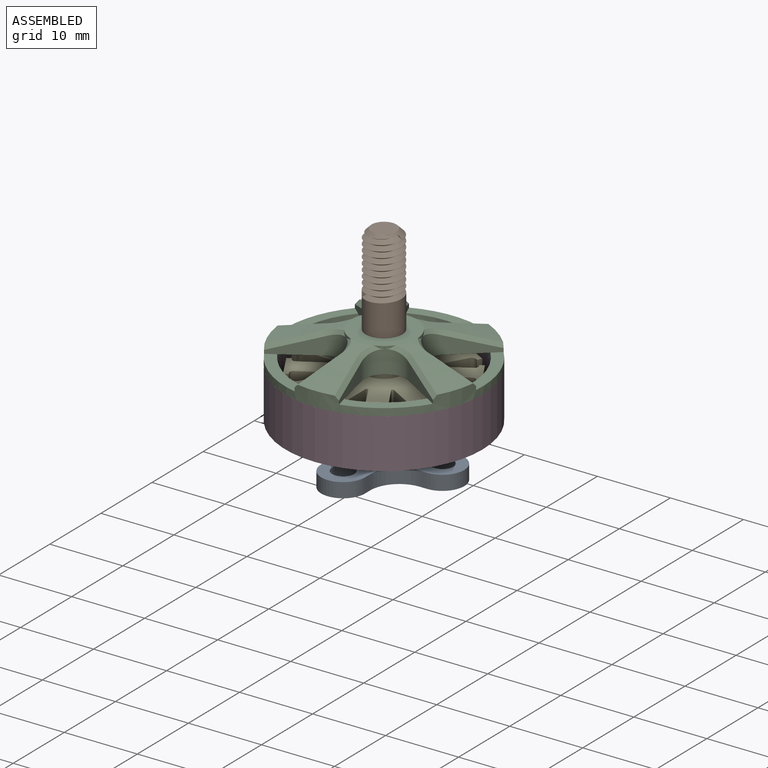
[diagram: assembled view]
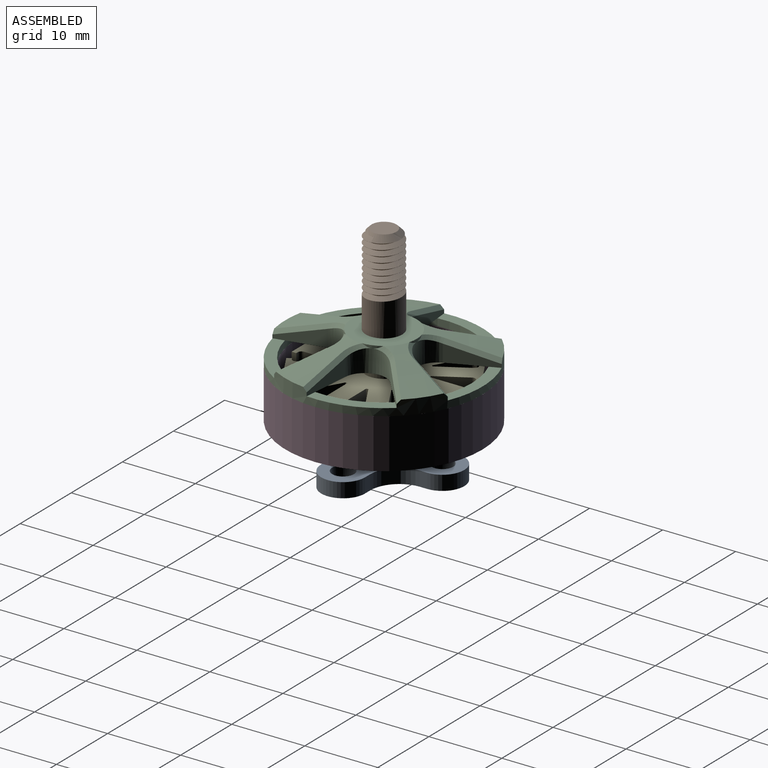
[diagram: assembled view, second angle]
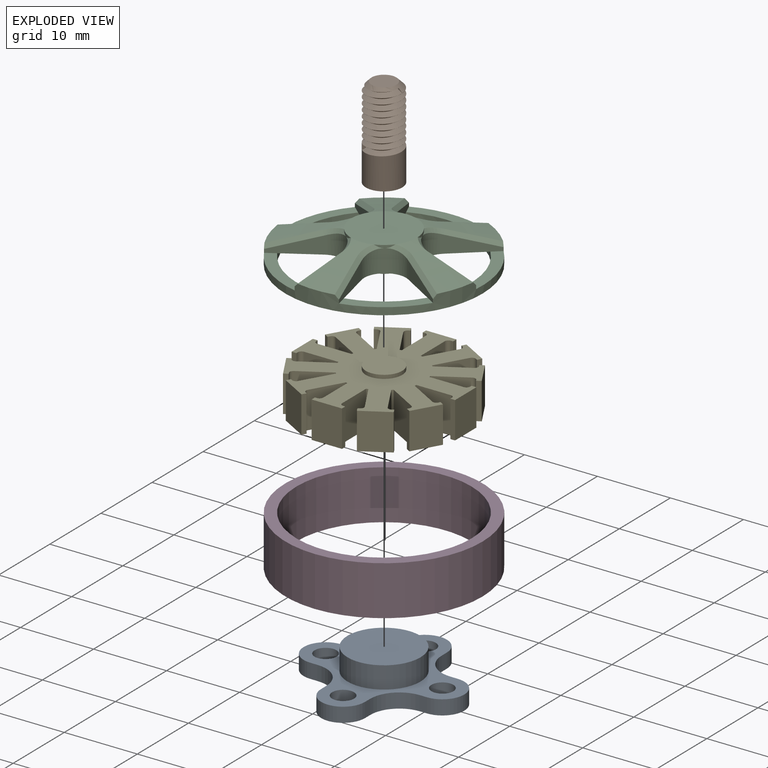
[diagram: exploded view]
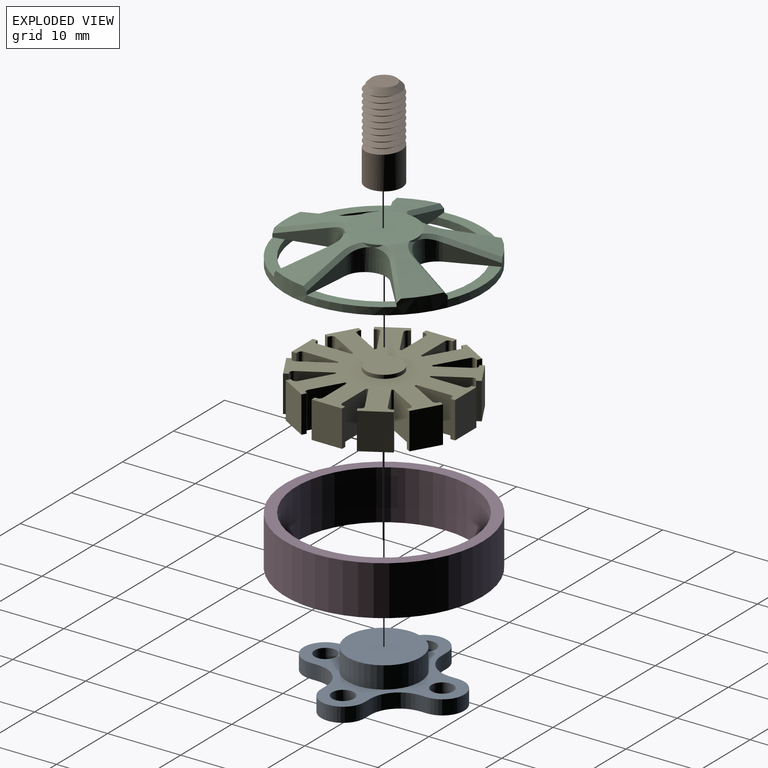
[diagram: exploded view, second angle]
ASSEMBLY  parts=5 mates=4
PART A: 27 faces, bbox 22x22x5 mm
  f0: plane 9x9mm, normal (0,0,-1), area 63.6mm2, adj f1
  f1: cylinder r=4.5mm len=9mm, axis (0,0,-1), area 56.5mm2, adj f0,f2
  f2: plane 22x22mm, normal (0,0,-1), area 134.4mm2, adj f1,f3,f4,f5,f6,f7,f8,f9
  f3: plane 2x1mm, normal (0,-1,0), area 2mm2, adj f2,f4,f18,f23
  f4: cylinder r=4mm len=4mm, axis (0,0,-1), area 12.6mm2, adj f2,f3,f5,f23
  f5: plane 2x1mm, normal (1,0,0), area 2mm2, adj f2,f4,f6,f23
  f6: cylinder r=3mm len=6mm, axis (0,0,-1), area 18.8mm2, adj f2,f5,f7,f23
  f7: plane 2x1mm, normal (-1,0,0), area 2mm2, adj f2,f6,f8,f23
  f8: cylinder r=4mm len=4mm, axis (0,0,-1), area 12.6mm2, adj f2,f7,f9,f23
  f9: plane 2x1mm, normal (0,-1,0), area 2mm2, adj f2,f8,f10,f23
  f10: cylinder r=3mm len=6mm, axis (0,0,-1), area 18.8mm2, adj f2,f9,f11,f23
  f11: plane 2x1mm, normal (0,1,0), area 2mm2, adj f2,f10,f12,f23
  f12: cylinder r=4mm len=4mm, axis (0,0,-1), area 12.6mm2, adj f2,f11,f13,f23
  f13: plane 2x1mm, normal (-1,0,0), area 2mm2, adj f2,f12,f14,f23
  f14: cylinder r=3mm len=6mm, axis (0,0,-1), area 18.8mm2, adj f2,f13,f15,f23
  f15: plane 2x1mm, normal (1,0,0), area 2mm2, adj f2,f14,f16,f23
  f16: cylinder r=4mm len=4mm, axis (0,0,-1), area 12.6mm2, adj f2,f15,f17,f23
  f17: plane 2x1mm, normal (0,1,0), area 2mm2, adj f2,f16,f18,f23
  f18: cylinder r=3mm len=6mm, axis (0,0,-1), area 18.8mm2, adj f2,f3,f17,f23
  f19: cylinder r=1.5mm len=3mm, axis (0,0,-1), area 18.8mm2, adj f2,f23
  f20: cylinder r=1.5mm len=3mm, axis (0,0,-1), area 18.8mm2, adj f2,f23
  f21: cylinder r=1.5mm len=3mm, axis (0,0,-1), area 18.8mm2, adj f2,f23
  f22: cylinder r=1.5mm len=3mm, axis (0,0,-1), area 18.8mm2, adj f2,f23
  f23: plane 22x22mm, normal (0,0,1), area 119.5mm2, adj f3,f4,f5,f6,f7,f8,f9,f10
  f24: cylinder r=5mm len=10mm, axis (0,0,-1), area 94.2mm2, adj f23,f25
  f25: plane 10x10mm, normal (0,0,1), area 58.9mm2, adj f24,f26
  f26: plane 5x5mm, normal (0,0,1), area 19.6mm2, adj f25
PART B: 10 faces, bbox 5.6x5.6x12.6 mm
  f0: plane 3.4x3.4mm, normal (0,0,1), area 9.1mm2, adj f2
  f1: plane 0.68x0.51mm, normal (0,-1,0), area 0.1mm2, adj f2,f3,f4,f5
  f2: cone r=1.7mm half-angle=45deg, axis (0,0,-1), area 10.2mm2, adj f0,f1,f4,f5
  f3: bspline ~7.99x5.58mm, area 100.2mm2, adj f1,f4,f5,f6,f7,f8
  f4: cylinder r=2.5mm len=6.7mm, axis (0,0,-1), area -4.7mm2, adj f1,f2,f3,f5,f8
  f5: bspline ~7.99x5.58mm, area 102.2mm2, adj f1,f2,f3,f4,f6,f8
  f6: plane 0.78x0.48mm, normal (0.71,-0.71,0), area 0.3mm2, adj f3,f5,f7
  f7: cylinder r=2.5mm len=5mm, axis (0,0,-1), area 71.9mm2, adj f3,f6,f8,f9
  f8: cylinder r=2.5mm len=0.66mm, axis (0,0,-1), area 0mm2, adj f3,f4,f5,f7
  f9: plane 5x5mm, normal (0,0,-1), area 19.6mm2, adj f7
PART C: 63 faces, bbox 27.1x27x4.6 mm
  f0: plane 10.55x2.45mm, normal (0,0,1), area 15.4mm2, adj f7,f8,f25,f26
  f1: plane 10.03x4.44mm, normal (0,0,1), area 15.4mm2, adj f7,f8,f30,f31
  f2: cone r=13.5mm half-angle=74.5deg, axis (0,0,-1), area 29.7mm2, adj f7,f32,f42,f43,f44,f45
  f3: plane 8.87x6.97mm, normal (0,0,1), area 15.4mm2, adj f7,f8,f15,f16
  f4: cone r=13.5mm half-angle=74.5deg, axis (0,0,-1), area 29.7mm2, adj f7,f32,f46,f47,f48,f49
  f5: plane 8.87x6.97mm, normal (0,0,1), area 15.4mm2, adj f7,f8,f20,f21
  f6: cone r=13.5mm half-angle=74.5deg, axis (0,0,-1), area 29.7mm2, adj f7,f32,f50,f51,f52,f53
  f7: cylinder r=13.5mm len=27mm, axis (0,0,-1), area 114.1mm2, adj f0,f1,f2,f3,f4,f5,f6,f9
  f8: cylinder r=12mm len=24mm, axis (0,0,-1), area 75.4mm2, adj f0,f1,f3,f5,f9,f38,f61
  f9: plane 10.03x4.44mm, normal (0,0,1), area 15.4mm2, adj f7,f8,f36,f37
  f10: cone r=13.5mm half-angle=74.5deg, axis (0,0,-1), area 29.7mm2, adj f7,f32,f40,f41,f58,f59
  f11: cone r=13.5mm half-angle=74.5deg, axis (0,0,-1), area 29.7mm2, adj f7,f32,f54,f55,f56,f57
  f12: cylinder r=4.5mm len=3.5mm, axis (0,0,-1), area 0.9mm2, adj f13,f14,f32,f38,f48,f51
  f13: cylinder r=2.8mm len=3.12mm, axis (0,0,-1), area 9mm2, adj f12,f15,f38,f48
  f14: cylinder r=2.8mm len=3.12mm, axis (0,0,-1), area 9mm2, adj f12,f16,f38,f51
  f15: plane 5.79x3.48mm, normal (-0.52,-0.86,0), area 9.6mm2, adj f3,f7,f13,f38,f49
  f16: plane 6.59x2.35mm, normal (0.97,0.22,0), area 9.6mm2, adj f3,f7,f14,f38,f50
  f17: cylinder r=4.5mm len=3.5mm, axis (0,0,-1), area 0.9mm2, adj f18,f19,f32,f38,f52,f55
  f18: cylinder r=2.8mm len=3.12mm, axis (0,0,-1), area 9mm2, adj f17,f20,f38,f52
  f19: cylinder r=2.8mm len=3.12mm, axis (0,0,-1), area 9mm2, adj f17,f21,f38,f55
  f20: plane 6.59x2.35mm, normal (-0.97,0.22,0), area 9.6mm2, adj f5,f7,f18,f38,f53
  f21: plane 5.79x3.48mm, normal (0.52,-0.86,0), area 9.6mm2, adj f5,f7,f19,f38,f54
  f22: cylinder r=4.5mm len=3.5mm, axis (0,0,-1), area 0.9mm2, adj f23,f24,f32,f38,f41,f43
  f23: cylinder r=2.8mm len=3.12mm, axis (0,0,-1), area 9mm2, adj f22,f25,f38,f43
  f24: cylinder r=2.8mm len=3.12mm, axis (0,0,-1), area 9mm2, adj f22,f26,f38,f41
  f25: plane 6.22x2.64mm, normal (-0.92,0.39,0), area 9.6mm2, adj f0,f7,f23,f38,f42
  f26: plane 6.22x2.64mm, normal (0.92,0.39,0), area 9.6mm2, adj f0,f7,f24,f38,f40
  f27: cylinder r=4.5mm len=3.5mm, axis (0,0,-1), area 0.9mm2, adj f28,f29,f32,f38,f44,f47
  f28: cylinder r=2.8mm len=3.12mm, axis (0,0,-1), area 9mm2, adj f27,f30,f38,f44
  f29: cylinder r=2.8mm len=3.12mm, axis (0,0,-1), area 9mm2, adj f27,f31,f38,f47
  f30: plane 5.1x4.43mm, normal (0.66,-0.75,0), area 9.6mm2, adj f1,f7,f28,f38,f45
  f31: plane 6.73x2.35mm, normal (0.09,1,0), area 9.6mm2, adj f1,f7,f29,f38,f46
  f32: plane 9x9mm, normal (0,0,1), area 44mm2, adj f2,f4,f6,f10,f11,f12,f17,f22
  f33: cylinder r=4.5mm len=3.5mm, axis (0,0,-1), area 0.9mm2, adj f32,f34,f35,f38,f56,f59
  f34: cylinder r=2.8mm len=3.12mm, axis (0,0,-1), area 9mm2, adj f33,f36,f38,f56
  f35: cylinder r=2.8mm len=3.12mm, axis (0,0,-1), area 9mm2, adj f33,f37,f38,f59
  f36: plane 6.73x2.35mm, normal (-0.09,1,0), area 9.6mm2, adj f7,f9,f34,f38,f57
  f37: plane 5.1x4.43mm, normal (-0.66,-0.75,0), area 9.6mm2, adj f7,f9,f35,f38,f58
  f38: plane 23.91x23.05mm, normal (0,0,-1), area 192.8mm2, adj f8,f12,f13,f14,f15,f16,f17,f18
  f39: cylinder r=2.5mm len=5mm, axis (0,0,-1), area 15.7mm2, adj f38,f60
  f40: bspline ~6.3x3.16mm, area 4.9mm2, adj f7,f10,f26,f41
  f41: bspline ~3.33x2.17mm, area 2.1mm2, adj f10,f22,f24,f40
  f42: bspline ~6.3x3.16mm, area 4.9mm2, adj f2,f7,f25,f43
  f43: bspline ~3.12x2.07mm, area 2.1mm2, adj f2,f22,f23,f42
  f44: bspline ~3.78x1.65mm, area 2.1mm2, adj f2,f27,f28,f45
  f45: bspline ~5.33x4.9mm, area 4.9mm2, adj f2,f7,f30,f44
  f46: bspline ~6.82x2.36mm, area 4.9mm2, adj f4,f7,f31,f47
  f47: bspline ~2.86x2.46mm, area 2.1mm2, adj f4,f27,f29,f46
  f48: bspline ~3.7x1.25mm, area 2.1mm2, adj f4,f12,f13,f49
  f49: bspline ~6.17x3.85mm, area 4.9mm2, adj f4,f7,f15,f48
  f50: bspline ~6.83x2.36mm, area 4.9mm2, adj f6,f7,f16,f51
  f51: bspline ~3.45x1.65mm, area 2.1mm2, adj f6,f12,f14,f50
  f52: bspline ~3.45x1.65mm, area 2.1mm2, adj f6,f17,f18,f53
  f53: bspline ~6.83x2.36mm, area 4.9mm2, adj f6,f7,f20,f52
  f54: bspline ~6.17x3.85mm, area 4.9mm2, adj f7,f11,f21,f55
  f55: bspline ~3.7x1.25mm, area 2.1mm2, adj f11,f17,f19,f54
  f56: bspline ~2.86x2.46mm, area 2.1mm2, adj f11,f33,f34,f57
  f57: bspline ~6.82x2.36mm, area 4.9mm2, adj f7,f11,f36,f56
  f58: bspline ~5.33x4.9mm, area 4.9mm2, adj f7,f10,f37,f59
  f59: bspline ~3.59x1.35mm, area 2.1mm2, adj f10,f33,f35,f58
  f60: plane 5x5mm, normal (0,0,-1), area 19.6mm2, adj f39
  f61: plane 27x27mm, normal (0,0,-1), area 120.2mm2, adj f7,f8
  f62: plane 5x5mm, normal (0,0,1), area 19.6mm2, adj f32
PART D: 4 faces, bbox 27x27x6.8 mm
  f0: plane 27x27mm, normal (0,0,1), area 120.2mm2, adj f1,f3
  f1: cylinder r=13.5mm len=27mm, axis (0,0,-1), area 576.8mm2, adj f0,f2
  f2: plane 27x27mm, normal (0,0,-1), area 120.2mm2, adj f1,f3
  f3: cylinder r=12mm len=24mm, axis (0,0,-1), area 512.7mm2, adj f0,f2
PART E: 126 faces, bbox 22.4x22.4x7 mm
  f0: plane 5x5mm, normal (0,0,1), area 19.6mm2, adj f125
  f1: plane 5x5mm, normal (0,0,-1), area 19.6mm2, adj f2
  f2: cylinder r=2.5mm len=5mm, axis (0,0,-1), area 23.6mm2, adj f1,f3
  f3: plane 22.39x22.38mm, normal (0,0,-1), area 267.2mm2, adj f2,f4,f5,f6,f7,f8,f9,f10
  f4: cylinder r=0.5mm len=5mm, axis (0,0,-1), area 3.9mm2, adj f3,f5,f123,f124
  f5: plane 5x0.25mm, normal (-0.87,-0.5,0), area 1.4mm2, adj f3,f4,f6,f124
  f6: plane 5x0.56mm, normal (-0.5,0.87,0), area 3.3mm2, adj f3,f5,f7,f124
  f7: plane 5x3.6mm, normal (0.87,0.5,0), area 20.8mm2, adj f3,f6,f8,f124
  f8: plane 5x0.56mm, normal (0.5,-0.87,0), area 3.3mm2, adj f3,f7,f9,f124
  f9: plane 5x0.25mm, normal (-0.87,-0.5,0), area 1.4mm2, adj f3,f8,f10,f124
  f10: cylinder r=0.5mm len=5mm, axis (0,0,-1), area 3.9mm2, adj f3,f9,f11,f124
  f11: plane 5x4.07mm, normal (0.5,-0.87,0), area 23.5mm2, adj f3,f10,f12,f124
  f12: cylinder r=5.5mm len=5mm, axis (0,0,-1), area 1.3mm2, adj f3,f11,f13,f124
  f13: plane 5x4.7mm, normal (0,1,0), area 23.5mm2, adj f3,f12,f14,f124
  f14: cylinder r=0.5mm len=5mm, axis (0,0,-1), area 3.9mm2, adj f3,f13,f15,f124
  f15: plane 5x0.29mm, normal (-1,0,0), area 1.4mm2, adj f3,f14,f16,f124
  f16: plane 5x0.65mm, normal (0,1,0), area 3.3mm2, adj f3,f15,f17,f124
  f17: plane 5x4.16mm, normal (1,0,0), area 20.8mm2, adj f3,f16,f18,f124
  f18: plane 5x0.65mm, normal (0,-1,0), area 3.3mm2, adj f3,f17,f19,f124
  f19: plane 5x0.29mm, normal (-1,0,0), area 1.4mm2, adj f3,f18,f20,f124
  f20: cylinder r=0.5mm len=5mm, axis (0,0,-1), area 3.9mm2, adj f3,f19,f21,f124
  f21: plane 5x4.7mm, normal (0,-1,0), area 23.5mm2, adj f3,f20,f22,f124
  f22: cylinder r=5.5mm len=5mm, axis (0,0,-1), area 1.3mm2, adj f3,f21,f23,f124
  f23: plane 5x4.07mm, normal (0.5,0.87,0), area 23.5mm2, adj f3,f22,f24,f124
  f24: cylinder r=0.5mm len=5mm, axis (0,0,-1), area 3.9mm2, adj f3,f23,f25,f124
  f25: plane 5x0.25mm, normal (-0.87,0.5,0), area 1.4mm2, adj f3,f24,f26,f124
  f26: plane 5x0.56mm, normal (0.5,0.87,0), area 3.3mm2, adj f3,f25,f27,f124
  f27: plane 5x3.6mm, normal (0.87,-0.5,0), area 20.8mm2, adj f3,f26,f28,f124
  f28: plane 5x0.56mm, normal (-0.5,-0.87,0), area 3.3mm2, adj f3,f27,f29,f124
  f29: plane 5x0.25mm, normal (-0.87,0.5,0), area 1.4mm2, adj f3,f28,f30,f124
  f30: cylinder r=0.5mm len=5mm, axis (0,0,-1), area 3.9mm2, adj f3,f29,f31,f124
  f31: plane 5x4.07mm, normal (-0.5,-0.87,0), area 23.5mm2, adj f3,f30,f32,f124
  f32: cylinder r=5.5mm len=5mm, axis (0,0,-1), area 1.3mm2, adj f3,f31,f33,f124
  f33: plane 5x4.07mm, normal (0.87,0.5,0), area 23.5mm2, adj f3,f32,f34,f124
  f34: cylinder r=0.5mm len=5mm, axis (0,0,-1), area 3.9mm2, adj f3,f33,f35,f124
  f35: plane 5x0.25mm, normal (-0.5,0.87,0), area 1.4mm2, adj f3,f34,f36,f124
  f36: plane 5x0.56mm, normal (0.87,0.5,0), area 3.3mm2, adj f3,f35,f37,f124
  f37: plane 5x3.6mm, normal (0.5,-0.87,0), area 20.8mm2, adj f3,f36,f38,f124
  f38: plane 5x0.56mm, normal (-0.87,-0.5,0), area 3.3mm2, adj f3,f37,f39,f124
  f39: plane 5x0.25mm, normal (-0.5,0.87,0), area 1.4mm2, adj f3,f38,f40,f124
  f40: cylinder r=0.5mm len=5mm, axis (0,0,-1), area 3.9mm2, adj f3,f39,f41,f124
  f41: plane 5x4.07mm, normal (-0.87,-0.5,0), area 23.5mm2, adj f3,f40,f42,f124
  f42: cylinder r=5.5mm len=5mm, axis (0,0,-1), area 1.3mm2, adj f3,f41,f43,f124
  f43: plane 5x4.7mm, normal (1,0,0), area 23.5mm2, adj f3,f42,f44,f124
  f44: cylinder r=0.5mm len=5mm, axis (0,0,-1), area 3.9mm2, adj f3,f43,f45,f124
  f45: plane 5x0.29mm, normal (0,1,0), area 1.4mm2, adj f3,f44,f46,f124
  f46: plane 5x0.65mm, normal (1,0,0), area 3.3mm2, adj f3,f45,f47,f124
  f47: plane 5x4.16mm, normal (0,-1,0), area 20.8mm2, adj f3,f46,f48,f124
  f48: plane 5x0.65mm, normal (-1,0,0), area 3.3mm2, adj f3,f47,f49,f124
  f49: plane 5x0.29mm, normal (0,1,0), area 1.4mm2, adj f3,f48,f50,f124
  f50: cylinder r=0.5mm len=5mm, axis (0,0,-1), area 3.9mm2, adj f3,f49,f51,f124
  f51: plane 5x4.7mm, normal (-1,0,0), area 23.5mm2, adj f3,f50,f52,f124
  f52: cylinder r=5.5mm len=5mm, axis (0,0,-1), area 1.3mm2, adj f3,f51,f53,f124
  f53: plane 5x4.07mm, normal (0.87,-0.5,0), area 23.5mm2, adj f3,f52,f54,f124
  f54: cylinder r=0.5mm len=5mm, axis (0,0,-1), area 3.9mm2, adj f3,f53,f55,f124
  f55: plane 5x0.25mm, normal (0.5,0.87,0), area 1.4mm2, adj f3,f54,f56,f124
  f56: plane 5x0.56mm, normal (0.87,-0.5,0), area 3.3mm2, adj f3,f55,f57,f124
  f57: plane 5x3.6mm, normal (-0.5,-0.87,0), area 20.8mm2, adj f3,f56,f58,f124
  f58: plane 5x0.56mm, normal (-0.87,0.5,0), area 3.3mm2, adj f3,f57,f59,f124
  f59: plane 5x0.25mm, normal (0.5,0.87,0), area 1.4mm2, adj f3,f58,f60,f124
  f60: cylinder r=0.5mm len=5mm, axis (0,0,-1), area 3.9mm2, adj f3,f59,f61,f124
  f61: plane 5x4.07mm, normal (-0.87,0.5,0), area 23.5mm2, adj f3,f60,f62,f124
  f62: cylinder r=5.5mm len=5mm, axis (0,0,-1), area 1.3mm2, adj f3,f61,f63,f124
  f63: plane 5x4.07mm, normal (0.5,-0.87,0), area 23.5mm2, adj f3,f62,f64,f124
  f64: cylinder r=0.5mm len=5mm, axis (0,0,-1), area 3.9mm2, adj f3,f63,f65,f124
  f65: plane 5x0.25mm, normal (0.87,0.5,0), area 1.4mm2, adj f3,f64,f66,f124
  f66: plane 5x0.56mm, normal (0.5,-0.87,0), area 3.3mm2, adj f3,f65,f67,f124
  f67: plane 5x3.6mm, normal (-0.87,-0.5,0), area 20.8mm2, adj f3,f66,f68,f124
  f68: plane 5x0.56mm, normal (-0.5,0.87,0), area 3.3mm2, adj f3,f67,f69,f124
  f69: plane 5x0.25mm, normal (0.87,0.5,0), area 1.4mm2, adj f3,f68,f70,f124
  f70: cylinder r=0.5mm len=5mm, axis (0,0,-1), area 3.9mm2, adj f3,f69,f71,f124
  f71: plane 5x4.07mm, normal (-0.5,0.87,0), area 23.5mm2, adj f3,f70,f72,f124
  f72: cylinder r=5.5mm len=5mm, axis (0,0,-1), area 1.3mm2, adj f3,f71,f73,f124
  f73: plane 5x4.7mm, normal (0,-1,0), area 23.5mm2, adj f3,f72,f74,f124
  f74: cylinder r=0.5mm len=5mm, axis (0,0,-1), area 3.9mm2, adj f3,f73,f75,f124
  f75: plane 5x0.29mm, normal (1,0,0), area 1.4mm2, adj f3,f74,f76,f124
  f76: plane 5x0.65mm, normal (0,-1,0), area 3.3mm2, adj f3,f75,f77,f124
  f77: plane 5x4.16mm, normal (-1,0,0), area 20.8mm2, adj f3,f76,f78,f124
  f78: plane 5x0.65mm, normal (0,1,0), area 3.3mm2, adj f3,f77,f79,f124
  f79: plane 5x0.29mm, normal (1,0,0), area 1.4mm2, adj f3,f78,f80,f124
  f80: cylinder r=0.5mm len=5mm, axis (0,0,-1), area 3.9mm2, adj f3,f79,f81,f124
  f81: plane 5x4.7mm, normal (0,1,0), area 23.5mm2, adj f3,f80,f82,f124
  f82: cylinder r=5.5mm len=5mm, axis (0,0,-1), area 1.3mm2, adj f3,f81,f83,f124
  f83: plane 5x4.07mm, normal (-0.5,-0.87,0), area 23.5mm2, adj f3,f82,f84,f124
  f84: cylinder r=0.5mm len=5mm, axis (0,0,-1), area 3.9mm2, adj f3,f83,f85,f124
  f85: plane 5x0.25mm, normal (0.87,-0.5,0), area 1.4mm2, adj f3,f84,f86,f124
  f86: plane 5x0.56mm, normal (-0.5,-0.87,0), area 3.3mm2, adj f3,f85,f87,f124
  f87: plane 5x3.6mm, normal (-0.87,0.5,0), area 20.8mm2, adj f3,f86,f88,f124
  f88: plane 5x0.56mm, normal (0.5,0.87,0), area 3.3mm2, adj f3,f87,f89,f124
  f89: plane 5x0.25mm, normal (0.87,-0.5,0), area 1.4mm2, adj f3,f88,f90,f124
  f90: cylinder r=0.5mm len=5mm, axis (0,0,-1), area 3.9mm2, adj f3,f89,f91,f124
  f91: plane 5x4.07mm, normal (0.5,0.87,0), area 23.5mm2, adj f3,f90,f92,f124
  f92: cylinder r=5.5mm len=5mm, axis (0,0,-1), area 1.3mm2, adj f3,f91,f93,f124
  f93: plane 5x4.07mm, normal (-0.87,-0.5,0), area 23.5mm2, adj f3,f92,f94,f124
  f94: cylinder r=0.5mm len=5mm, axis (0,0,-1), area 3.9mm2, adj f3,f93,f95,f124
  f95: plane 5x0.25mm, normal (0.5,-0.87,0), area 1.4mm2, adj f3,f94,f96,f124
  f96: plane 5x0.56mm, normal (-0.87,-0.5,0), area 3.3mm2, adj f3,f95,f97,f124
  f97: plane 5x3.6mm, normal (-0.5,0.87,0), area 20.8mm2, adj f3,f96,f98,f124
  f98: plane 5x0.56mm, normal (0.87,0.5,0), area 3.3mm2, adj f3,f97,f99,f124
  f99: plane 5x0.25mm, normal (0.5,-0.87,0), area 1.4mm2, adj f3,f98,f100,f124
  f100: cylinder r=0.5mm len=5mm, axis (0,0,-1), area 3.9mm2, adj f3,f99,f101,f124
  f101: plane 5x4.07mm, normal (0.87,0.5,0), area 23.5mm2, adj f3,f100,f102,f124
  f102: cylinder r=5.5mm len=5mm, axis (0,0,-1), area 1.3mm2, adj f3,f101,f103,f124
  f103: plane 5x4.7mm, normal (-1,0,0), area 23.5mm2, adj f3,f102,f104,f124
  f104: cylinder r=0.5mm len=5mm, axis (0,0,-1), area 3.9mm2, adj f3,f103,f105,f124
  f105: plane 5x0.29mm, normal (0,-1,0), area 1.4mm2, adj f3,f104,f106,f124
  f106: plane 5x0.65mm, normal (-1,0,0), area 3.3mm2, adj f3,f105,f107,f124
  f107: plane 5x4.16mm, normal (0,1,0), area 20.8mm2, adj f3,f106,f108,f124
  f108: plane 5x0.65mm, normal (1,0,0), area 3.3mm2, adj f3,f107,f109,f124
  f109: plane 5x0.29mm, normal (0,-1,0), area 1.4mm2, adj f3,f108,f110,f124
  f110: cylinder r=0.5mm len=5mm, axis (0,0,-1), area 3.9mm2, adj f3,f109,f111,f124
  f111: plane 5x4.7mm, normal (1,0,0), area 23.5mm2, adj f3,f110,f112,f124
  f112: cylinder r=5.5mm len=5mm, axis (0,0,-1), area 1.3mm2, adj f3,f111,f113,f124
  f113: plane 5x4.07mm, normal (-0.87,0.5,0), area 23.5mm2, adj f3,f112,f114,f124
  f114: cylinder r=0.5mm len=5mm, axis (0,0,-1), area 3.9mm2, adj f3,f113,f115,f124
  f115: plane 5x0.25mm, normal (-0.5,-0.87,0), area 1.4mm2, adj f3,f114,f116,f124
  f116: plane 5x0.56mm, normal (-0.87,0.5,0), area 3.3mm2, adj f3,f115,f117,f124
  f117: plane 5x3.6mm, normal (0.5,0.87,0), area 20.8mm2, adj f3,f116,f118,f124
  f118: plane 5x0.56mm, normal (0.87,-0.5,0), area 3.3mm2, adj f3,f117,f119,f124
  f119: plane 5x0.25mm, normal (-0.5,-0.87,0), area 1.4mm2, adj f3,f118,f120,f124
  f120: cylinder r=0.5mm len=5mm, axis (0,0,-1), area 3.9mm2, adj f3,f119,f121,f124
  f121: plane 5x4.07mm, normal (0.87,-0.5,0), area 23.5mm2, adj f3,f120,f122,f124
  f122: cylinder r=5.5mm len=5mm, axis (0,0,-1), area 1.3mm2, adj f3,f121,f123,f124
  f123: plane 5x4.07mm, normal (-0.5,0.87,0), area 23.5mm2, adj f3,f4,f122,f124
  f124: plane 22.39x22.38mm, normal (0,0,1), area 267.2mm2, adj f4,f5,f6,f7,f8,f9,f10,f11
  f125: cylinder r=2.5mm len=5mm, axis (0,0,-1), area 7.9mm2, adj f0,f124
PLACE A t=(-16.65,-0.8,-7.45)mm
PLACE B t=(-16.65,-0.8,-7.45)mm
PLACE C t=(-16.65,-0.8,-7.45)mm
PLACE D t=(-16.65,-0.8,-7.45)mm
PLACE E t=(-16.65,-0.8,-7.45)mm
MATE fastened B.f2 <-> C.f12  axis (0,0,-1) through (-16.65,-0.8,9.05)mm
MATE revolute C.f2 <-> E.f2  axis (0,0,-1) through (-16.65,-0.8,4.55)mm
MATE fastened E.f2 <-> A.f1  axis (0,0,-1) through (-16.65,-0.8,-2.45)mm
MATE fastened D.f1 <-> C.f33  axis (0,0,1) through (-16.65,-0.8,4.55)mm
